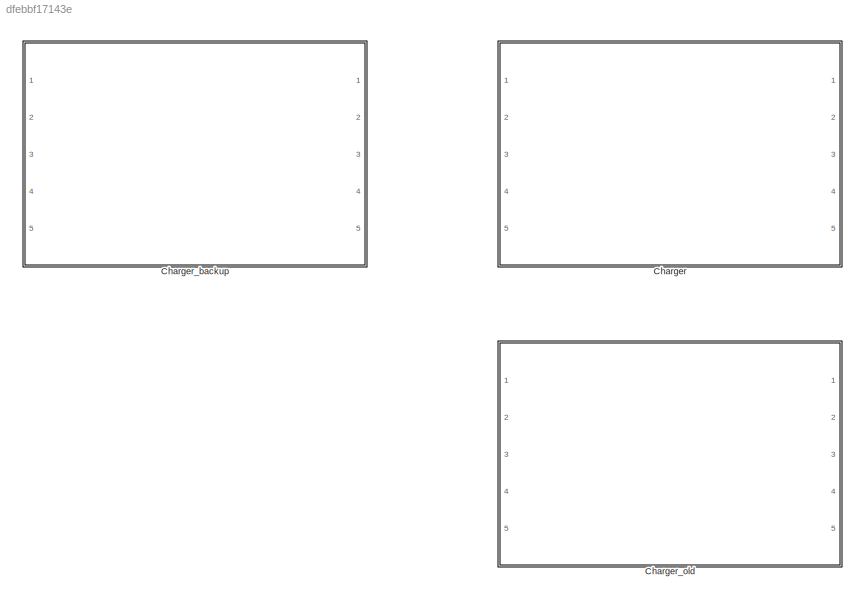
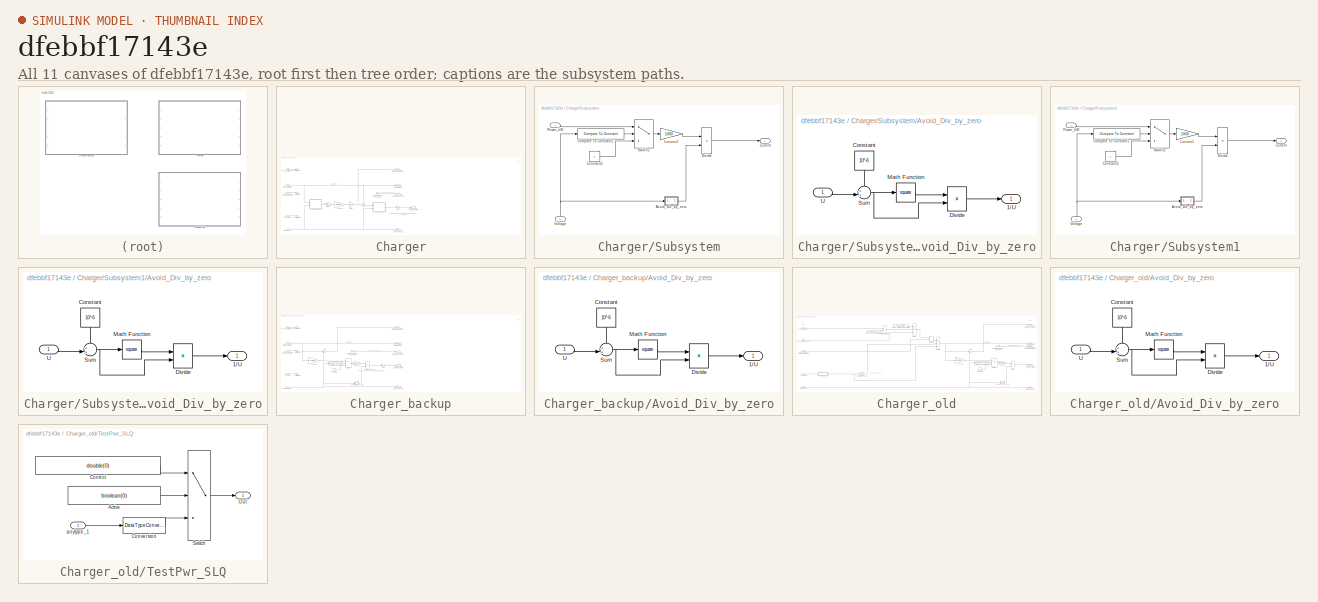
[diagram: thumbnail index - all 11 canvases of the model, root first then tree order]
MODEL slx_dfebbf17143e
KIND library
CONFIG AbsTol = auto
CONFIG FixedStep = auto
CONFIG MaxStep = auto
CONFIG MinStep = auto
CONFIG RelTol = 1e-3
CONFIG SampleTimeConstraint = Unconstrained
CONFIG Solver = ode45
CONFIG SolverMode = Auto
CONFIG SolverName = ode45
CONFIG StartTime = 0.0
CONFIG StopTime = 10.0
BLOCK [SubSystem] Charger
  Ports = [5, 5]
  RequestExecContextInheritance = off
  Variant = off
BLOCK [Gain] Charger/Gain
  Gain = -1
  OutDataTypeStr = Inherit: Inherit via internal rule
  ParamDataTypeStr = Inherit: Inherit via internal rule
  SaturateOnIntegerOverflow = off
BLOCK [Gain] Charger/Gain1
  Gain = 0.001
  OutDataTypeStr = Inherit: Inherit via internal rule
  ParamDataTypeStr = Inherit: Inherit via internal rule
  SaturateOnIntegerOverflow = off
BLOCK [Constant] Charger/Isolation resistance 500k Ohm
  Value = 1000
BLOCK [Gain] Charger/Losses1
  Gain = Charger_resistance
  OutDataTypeStr = Inherit: Inherit via internal rule
  ParamDataTypeStr = Inherit: Inherit via internal rule
  SaturateOnIntegerOverflow = off
BLOCK [Product] Charger/Product
  InputSameDT = off
  OutDataTypeStr = Inherit: Inherit via internal rule
  Ports = [2, 1]
  RndMeth = Floor
  SaturateOnIntegerOverflow = off
BLOCK [SubSystem] Charger/Subsystem
  Ports = [2, 1]
  RequestExecContextInheritance = off
  Variant = off
BLOCK [SubSystem] Charger/Subsystem/Avoid_Div_by_zero
  Ports = [1, 1]
  RequestExecContextInheritance = off
  Variant = off
BLOCK [Outport] Charger/Subsystem/Avoid_Div_by_zero/1//U
  IconDisplay = Port number
BLOCK [Constant] Charger/Subsystem/Avoid_Div_by_zero/Constant
  Value = 10^-6
BLOCK [Product] Charger/Subsystem/Avoid_Div_by_zero/Divide
  InputSameDT = off
  Inputs = /*
  OutDataTypeStr = Inherit: Inherit via internal rule
  Ports = [2, 1]
  RndMeth = Floor
  SaturateOnIntegerOverflow = off
BLOCK [Math] Charger/Subsystem/Avoid_Div_by_zero/Math Function
  Operator = square
  Ports = [1, 1]
BLOCK [Sum] Charger/Subsystem/Avoid_Div_by_zero/Sum
  IconShape = round
  InputSameDT = off
  Inputs = ++|
  OutDataTypeStr = Inherit: Inherit via internal rule
  Ports = [2, 1]
  SaturateOnIntegerOverflow = off
BLOCK [Inport] Charger/Subsystem/Avoid_Div_by_zero/U
  IconDisplay = Port number
BLOCK [Reference] Charger/Subsystem/Compare To Constant1  REF=simulink/Logic and Bit
Operations/Compare
To Constant
  Ports = [1, 1]
  SourceBlock = simulink/Logic and Bit\nOperations/Compare\nTo Constant
  SourceType = Compare To Constant
BLOCK [Constant] Charger/Subsystem/Constant2
  Value = 0
BLOCK [Outport] Charger/Subsystem/Current
  IconDisplay = Port number
BLOCK [Product] Charger/Subsystem/Divide
  InputSameDT = off
  Inputs = **
  OutDataTypeStr = Inherit: Inherit via internal rule
  Ports = [2, 1]
  RndMeth = Floor
  SaturateOnIntegerOverflow = off
BLOCK [Gain] Charger/Subsystem/Losses2
  Gain = 1000
  OutDataTypeStr = Inherit: Inherit via internal rule
  ParamDataTypeStr = Inherit: Inherit via internal rule
  SaturateOnIntegerOverflow = off
BLOCK [Inport] Charger/Subsystem/Power_kW
  IconDisplay = Port number
BLOCK [Switch] Charger/Subsystem/Switch2
  Criteria = u2 > Threshold
  InputSameDT = off
  SaturateOnIntegerOverflow = off
BLOCK [Inport] Charger/Subsystem/Voltage
  IconDisplay = Port number
  Port = 2
BLOCK [SubSystem] Charger/Subsystem1
  Ports = [2, 1]
  RequestExecContextInheritance = off
  Variant = off
BLOCK [SubSystem] Charger/Subsystem1/Avoid_Div_by_zero
  Ports = [1, 1]
  RequestExecContextInheritance = off
  Variant = off
BLOCK [Outport] Charger/Subsystem1/Avoid_Div_by_zero/1//U
  IconDisplay = Port number
BLOCK [Constant] Charger/Subsystem1/Avoid_Div_by_zero/Constant
  Value = 10^-6
BLOCK [Product] Charger/Subsystem1/Avoid_Div_by_zero/Divide
  InputSameDT = off
  Inputs = /*
  OutDataTypeStr = Inherit: Inherit via internal rule
  Ports = [2, 1]
  RndMeth = Floor
  SaturateOnIntegerOverflow = off
BLOCK [Math] Charger/Subsystem1/Avoid_Div_by_zero/Math Function
  Operator = square
  Ports = [1, 1]
BLOCK [Sum] Charger/Subsystem1/Avoid_Div_by_zero/Sum
  IconShape = round
  InputSameDT = off
  Inputs = ++|
  OutDataTypeStr = Inherit: Inherit via internal rule
  Ports = [2, 1]
  SaturateOnIntegerOverflow = off
BLOCK [Inport] Charger/Subsystem1/Avoid_Div_by_zero/U
  IconDisplay = Port number
BLOCK [Reference] Charger/Subsystem1/Compare To Constant1  REF=simulink/Logic and Bit
Operations/Compare
To Constant
  Ports = [1, 1]
  SourceBlock = simulink/Logic and Bit\nOperations/Compare\nTo Constant
  SourceType = Compare To Constant
BLOCK [Constant] Charger/Subsystem1/Constant2
  Value = 0
BLOCK [Outport] Charger/Subsystem1/Current
  IconDisplay = Port number
BLOCK [Product] Charger/Subsystem1/Divide
  InputSameDT = off
  Inputs = **
  OutDataTypeStr = Inherit: Inherit via internal rule
  Ports = [2, 1]
  RndMeth = Floor
  SaturateOnIntegerOverflow = off
BLOCK [Gain] Charger/Subsystem1/Losses2
  Gain = 1000
  OutDataTypeStr = Inherit: Inherit via internal rule
  ParamDataTypeStr = Inherit: Inherit via internal rule
  SaturateOnIntegerOverflow = off
BLOCK [Inport] Charger/Subsystem1/Power_kW
  IconDisplay = Port number
BLOCK [Switch] Charger/Subsystem1/Switch2
  Criteria = u2 > Threshold
  InputSameDT = off
  SaturateOnIntegerOverflow = off
BLOCK [Inport] Charger/Subsystem1/Voltage
  IconDisplay = Port number
  Port = 2
BLOCK [Sum] Charger/Sum
  IconShape = round
  InputSameDT = off
  Inputs = +-|
  OutDataTypeStr = Inherit: Inherit via internal rule
  Ports = [2, 1]
  SaturateOnIntegerOverflow = off
BLOCK [Terminator] Charger/Terminator
BLOCK [Terminator] Charger/Terminator1
BLOCK [Terminator] Charger/Terminator2
BLOCK [Inport] Charger/TestPwrSLQ
  IconDisplay = Port number
  Port = 3
BLOCK [Inport] Charger/VCCU_CAN_MaxPlginChrgPwrLim
  IconDisplay = Port number
  Port = 4
BLOCK [Inport] Charger/evcc_ChrgCoupConn_Stat
  IconDisplay = Port number
BLOCK [Inport] Charger/evcc_EVSE_PresentPower
  IconDisplay = Port number
  Port = 2
BLOCK [Outport] Charger/hvs_VCCU_DCLinkLink_vlt
  IconDisplay = Port number
  Port = 5
BLOCK [Outport] Charger/hvs_charger_ExtChrgr_Isolation_ResistanceCval
  IconDisplay = Port number
  Port = 3
BLOCK [Outport] Charger/hvs_charger_WasteHeat_power
  IconDisplay = Port number
BLOCK [Outport] Charger/hvs_charger_pwrChrgPhy
  IconDisplay = Port number
  Port = 2
BLOCK [Outport] Charger/hvs_dcLink_charger_current
  IconDisplay = Port number
  Port = 4
BLOCK [Inport] Charger/vltZkBmsPhy
  IconDisplay = Port number
  Port = 5
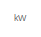
[diagram: Charger_backup - part 1/2, top right region]
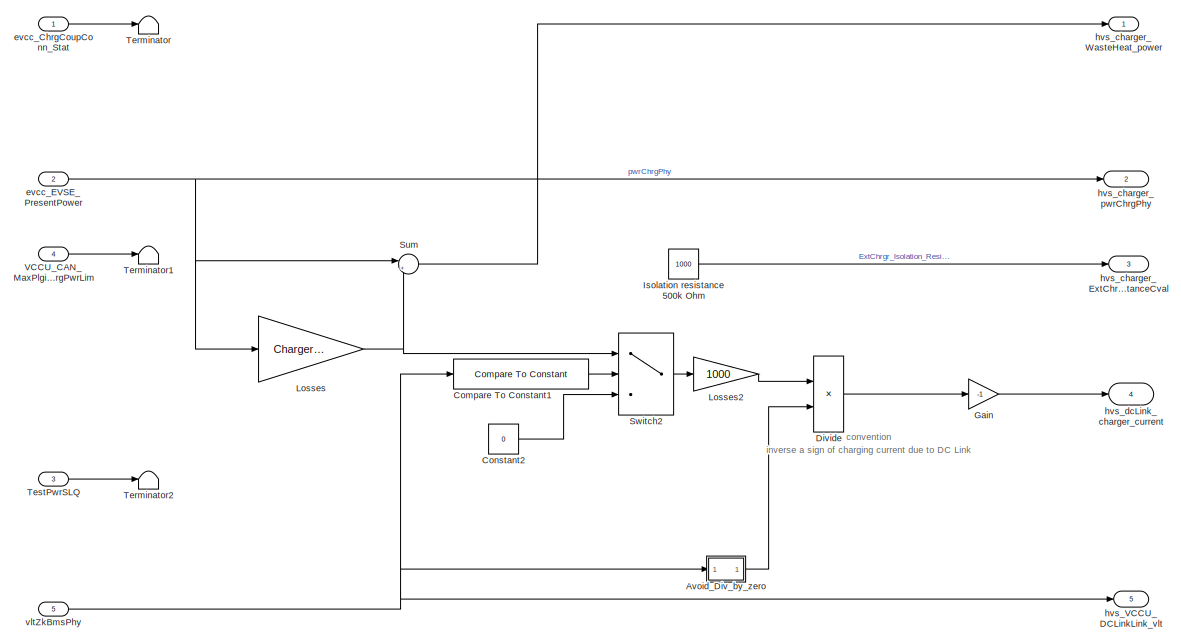
[diagram: Charger_backup - part 2/2, left side, full height]
BLOCK [SubSystem] Charger_backup
  Ports = [5, 5]
  RequestExecContextInheritance = off
  Variant = off
BLOCK [SubSystem] Charger_backup/Avoid_Div_by_zero
  Ports = [1, 1]
  RequestExecContextInheritance = off
  Variant = off
BLOCK [Outport] Charger_backup/Avoid_Div_by_zero/1//U
  IconDisplay = Port number
BLOCK [Constant] Charger_backup/Avoid_Div_by_zero/Constant
  Value = 10^-6
BLOCK [Product] Charger_backup/Avoid_Div_by_zero/Divide
  InputSameDT = off
  Inputs = /*
  OutDataTypeStr = Inherit: Inherit via internal rule
  Ports = [2, 1]
  RndMeth = Floor
  SaturateOnIntegerOverflow = off
BLOCK [Math] Charger_backup/Avoid_Div_by_zero/Math Function
  Operator = square
  Ports = [1, 1]
BLOCK [Sum] Charger_backup/Avoid_Div_by_zero/Sum
  IconShape = round
  InputSameDT = off
  Inputs = ++|
  OutDataTypeStr = Inherit: Inherit via internal rule
  Ports = [2, 1]
  SaturateOnIntegerOverflow = off
BLOCK [Inport] Charger_backup/Avoid_Div_by_zero/U
  IconDisplay = Port number
BLOCK [Reference] Charger_backup/Compare To Constant1  REF=simulink/Logic and Bit
Operations/Compare
To Constant
  Ports = [1, 1]
  SourceBlock = simulink/Logic and Bit\nOperations/Compare\nTo Constant
  SourceType = Compare To Constant
BLOCK [Constant] Charger_backup/Constant2
  Value = 0
BLOCK [Product] Charger_backup/Divide
  InputSameDT = off
  Inputs = **
  OutDataTypeStr = Inherit: Inherit via internal rule
  Ports = [2, 1]
  RndMeth = Floor
  SaturateOnIntegerOverflow = off
BLOCK [Gain] Charger_backup/Gain
  Gain = -1
  OutDataTypeStr = Inherit: Inherit via internal rule
  ParamDataTypeStr = Inherit: Inherit via internal rule
  SaturateOnIntegerOverflow = off
BLOCK [Constant] Charger_backup/Isolation resistance 500k Ohm
  Value = 1000
BLOCK [Gain] Charger_backup/Losses
  Gain = Charger.efficiency
  OutDataTypeStr = Inherit: Inherit via internal rule
  ParamDataTypeStr = Inherit: Inherit via internal rule
  SaturateOnIntegerOverflow = off
BLOCK [Gain] Charger_backup/Losses2
  Gain = 1000
  OutDataTypeStr = Inherit: Inherit via internal rule
  ParamDataTypeStr = Inherit: Inherit via internal rule
  SaturateOnIntegerOverflow = off
BLOCK [Sum] Charger_backup/Sum
  IconShape = round
  InputSameDT = off
  Inputs = |+-
  OutDataTypeStr = Inherit: Inherit via internal rule
  Ports = [2, 1]
  SaturateOnIntegerOverflow = off
BLOCK [Switch] Charger_backup/Switch2
  Criteria = u2 > Threshold
  InputSameDT = off
  SaturateOnIntegerOverflow = off
BLOCK [Terminator] Charger_backup/Terminator
BLOCK [Terminator] Charger_backup/Terminator1
BLOCK [Terminator] Charger_backup/Terminator2
BLOCK [Inport] Charger_backup/TestPwrSLQ
  IconDisplay = Port number
  Port = 3
BLOCK [Inport] Charger_backup/VCCU_CAN_MaxPlginChrgPwrLim
  IconDisplay = Port number
  Port = 4
BLOCK [Inport] Charger_backup/evcc_ChrgCoupConn_Stat
  IconDisplay = Port number
BLOCK [Inport] Charger_backup/evcc_EVSE_PresentPower
  IconDisplay = Port number
  Port = 2
BLOCK [Outport] Charger_backup/hvs_VCCU_DCLinkLink_vlt
  IconDisplay = Port number
  Port = 5
BLOCK [Outport] Charger_backup/hvs_charger_ExtChrgr_Isolation_ResistanceCval
  IconDisplay = Port number
  Port = 3
BLOCK [Outport] Charger_backup/hvs_charger_WasteHeat_power
  IconDisplay = Port number
BLOCK [Outport] Charger_backup/hvs_charger_pwrChrgPhy
  IconDisplay = Port number
  Port = 2
BLOCK [Outport] Charger_backup/hvs_dcLink_charger_current
  IconDisplay = Port number
  Port = 4
BLOCK [Inport] Charger_backup/vltZkBmsPhy
  IconDisplay = Port number
  Port = 5
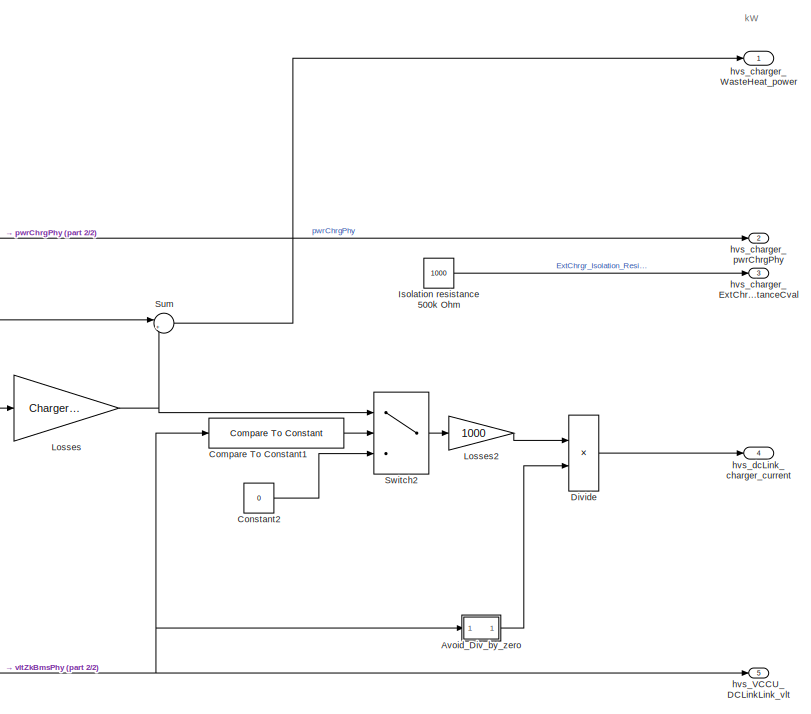
[diagram: Charger_old - part 1/2, right side, full height]
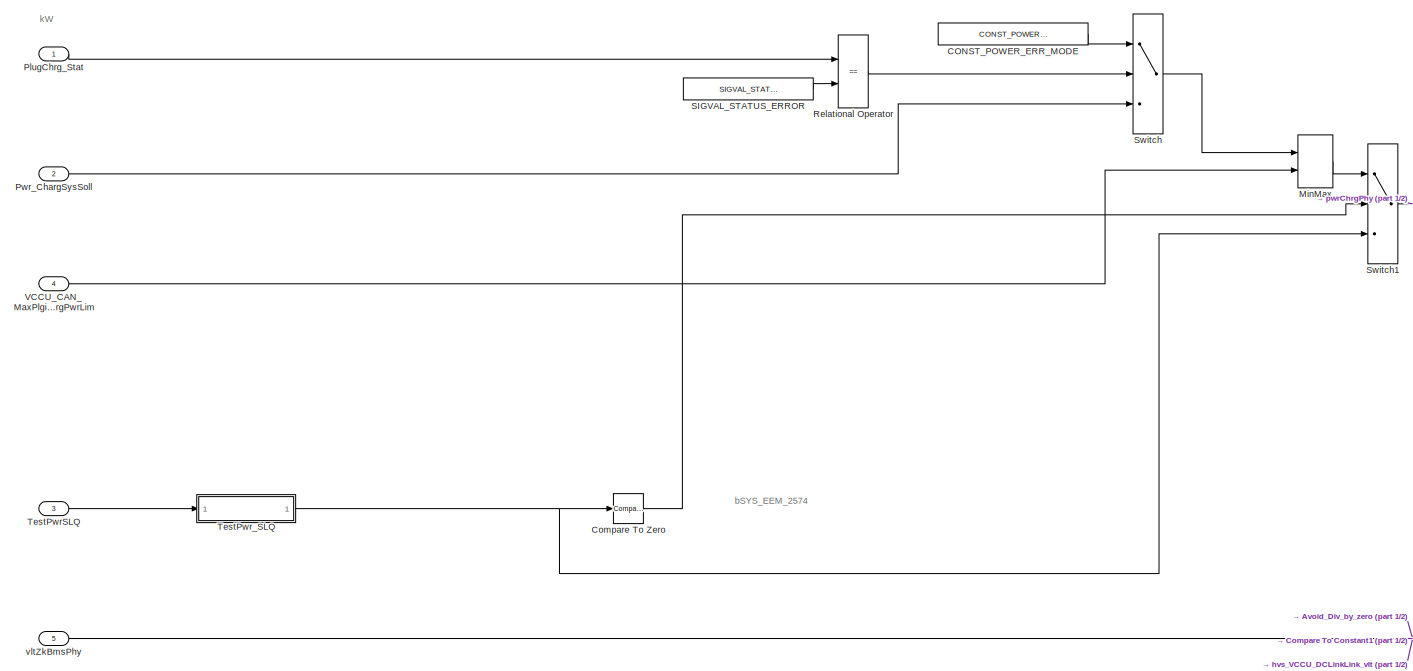
[diagram: Charger_old - part 2/2, left side, full height]
BLOCK [SubSystem] Charger_old
  Ports = [5, 5]
  RequestExecContextInheritance = off
  Variant = off
BLOCK [SubSystem] Charger_old/Avoid_Div_by_zero
  Ports = [1, 1]
  RequestExecContextInheritance = off
  Variant = off
BLOCK [Outport] Charger_old/Avoid_Div_by_zero/1//U
  IconDisplay = Port number
BLOCK [Constant] Charger_old/Avoid_Div_by_zero/Constant
  Value = 10^-6
BLOCK [Product] Charger_old/Avoid_Div_by_zero/Divide
  InputSameDT = off
  Inputs = /*
  OutDataTypeStr = Inherit: Inherit via internal rule
  Ports = [2, 1]
  RndMeth = Floor
  SaturateOnIntegerOverflow = off
BLOCK [Math] Charger_old/Avoid_Div_by_zero/Math Function
  Operator = square
  Ports = [1, 1]
BLOCK [Sum] Charger_old/Avoid_Div_by_zero/Sum
  IconShape = round
  InputSameDT = off
  Inputs = ++|
  OutDataTypeStr = Inherit: Inherit via internal rule
  Ports = [2, 1]
  SaturateOnIntegerOverflow = off
BLOCK [Inport] Charger_old/Avoid_Div_by_zero/U
  IconDisplay = Port number
BLOCK [Constant] Charger_old/CONST_POWER_ERR_MODE
  Value = CONST_POWER_ERR_MODE
BLOCK [Reference] Charger_old/Compare To Constant1  REF=simulink/Logic and Bit
Operations/Compare
To Constant
  Ports = [1, 1]
  SourceBlock = simulink/Logic and Bit\nOperations/Compare\nTo Constant
  SourceType = Compare To Constant
BLOCK [Reference] Charger_old/Compare To Zero  REF=simulink/Logic and Bit
Operations/Compare
To Zero
  Ports = [1, 1]
  SourceBlock = simulink/Logic and Bit\nOperations/Compare\nTo Zero
  SourceType = Compare To Zero
BLOCK [Constant] Charger_old/Constant2
  Value = 0
BLOCK [Product] Charger_old/Divide
  InputSameDT = off
  Inputs = **
  OutDataTypeStr = Inherit: Inherit via internal rule
  Ports = [2, 1]
  RndMeth = Floor
  SaturateOnIntegerOverflow = off
BLOCK [Constant] Charger_old/Isolation resistance 500k Ohm
  Value = 1000
BLOCK [Gain] Charger_old/Losses
  Gain = Charger.efficiency
  OutDataTypeStr = Inherit: Inherit via internal rule
  ParamDataTypeStr = Inherit: Inherit via internal rule
  SaturateOnIntegerOverflow = off
BLOCK [Gain] Charger_old/Losses2
  Gain = 1000
  OutDataTypeStr = Inherit: Inherit via internal rule
  ParamDataTypeStr = Inherit: Inherit via internal rule
  SaturateOnIntegerOverflow = off
BLOCK [MinMax] Charger_old/MinMax
  InputSameDT = off
  Inputs = 2
  Ports = [2, 1]
  SaturateOnIntegerOverflow = off
BLOCK [Inport] Charger_old/PlugChrg_Stat
  IconDisplay = Port number
BLOCK [Inport] Charger_old/Pwr_ChargSysSoll
  IconDisplay = Port number
  Port = 2
BLOCK [RelationalOperator] Charger_old/Relational Operator
  InputSameDT = off
  Operator = ==
  OutDataTypeStr = boolean
  Ports = [2, 1]
BLOCK [Constant] Charger_old/SIGVAL_STATUS_ERROR
  Value = SIGVAL_STATUS_ERROR
BLOCK [Sum] Charger_old/Sum
  IconShape = round
  InputSameDT = off
  Inputs = |+-
  OutDataTypeStr = Inherit: Inherit via internal rule
  Ports = [2, 1]
  SaturateOnIntegerOverflow = off
BLOCK [Switch] Charger_old/Switch
  InputSameDT = off
  SaturateOnIntegerOverflow = off
  Threshold = 0.5
BLOCK [Switch] Charger_old/Switch1
  InputSameDT = off
  SaturateOnIntegerOverflow = off
  Threshold = 0.5
BLOCK [Switch] Charger_old/Switch2
  Criteria = u2 > Threshold
  InputSameDT = off
  SaturateOnIntegerOverflow = off
BLOCK [Inport] Charger_old/TestPwrSLQ
  IconDisplay = Port number
  Port = 3
BLOCK [SubSystem] Charger_old/TestPwr_SLQ
  OpenFcn = TOI_Block
  Ports = [1, 1]
  RequestExecContextInheritance = off
  Tag = Manip_Signal
  Variant = off
BLOCK [Constant] Charger_old/TestPwr_SLQ/Active
  Value = boolean(0)
BLOCK [Constant] Charger_old/TestPwr_SLQ/Control
  Value = double(0)
BLOCK [DataTypeConversion] Charger_old/TestPwr_SLQ/Conversion
  SaturateOnIntegerOverflow = off
BLOCK [Outport] Charger_old/TestPwr_SLQ/Out
  Description = ||0|0|0
  IconDisplay = Port number
BLOCK [Switch] Charger_old/TestPwr_SLQ/Switch
  Threshold = 0.1
BLOCK [Inport] Charger_old/TestPwr_SLQ/anytype_1
  IconDisplay = Port number
BLOCK [Inport] Charger_old/VCCU_CAN_MaxPlginChrgPwrLim
  IconDisplay = Port number
  Port = 4
BLOCK [Outport] Charger_old/hvs_VCCU_DCLinkLink_vlt
  IconDisplay = Port number
  Port = 5
BLOCK [Outport] Charger_old/hvs_charger_ExtChrgr_Isolation_ResistanceCval
  IconDisplay = Port number
  Port = 3
BLOCK [Outport] Charger_old/hvs_charger_WasteHeat_power
  IconDisplay = Port number
BLOCK [Outport] Charger_old/hvs_charger_pwrChrgPhy
  IconDisplay = Port number
  Port = 2
BLOCK [Outport] Charger_old/hvs_dcLink_charger_current
  IconDisplay = Port number
  Port = 4
BLOCK [Inport] Charger_old/vltZkBmsPhy
  IconDisplay = Port number
  Port = 5
ANNOTATION Charger: inverse a sign of charging current due to DC Link convention
ANNOTATION Charger: kW
ANNOTATION Charger_backup: inverse a sign of charging current due to DC Link convention
ANNOTATION Charger_backup: kW
ANNOTATION Charger_old: bSYS_EEM_2574
ANNOTATION Charger_old: kW
NET Charger/Gain1:1 -> Charger/Sum:2, Charger/hvs_charger_WasteHeat_power:1
LINE Charger/Gain:1 -> Charger/hvs_dcLink_charger_current:1
LINE Charger/Isolation resistance 500k Ohm:1 -> Charger/hvs_charger_ExtChrgr_Isolation_ResistanceCval:1
LINE Charger/Losses1:1 -> Charger/Gain1:1
LINE Charger/Product:1 -> Charger/Losses1:1
LINE Charger/Subsystem/Avoid_Div_by_zero/Constant:1 -> Charger/Subsystem/Avoid_Div_by_zero/Sum:1
LINE Charger/Subsystem/Avoid_Div_by_zero/Divide:1 -> Charger/Subsystem/Avoid_Div_by_zero/1//U:1
LINE Charger/Subsystem/Avoid_Div_by_zero/Math Function:1 -> Charger/Subsystem/Avoid_Div_by_zero/Divide:1
NET Charger/Subsystem/Avoid_Div_by_zero/Sum:1 -> Charger/Subsystem/Avoid_Div_by_zero/Divide:2, Charger/Subsystem/Avoid_Div_by_zero/Math Function:1
LINE Charger/Subsystem/Avoid_Div_by_zero/U:1 -> Charger/Subsystem/Avoid_Div_by_zero/Sum:2
LINE Charger/Subsystem/Avoid_Div_by_zero:1 -> Charger/Subsystem/Divide:2
LINE Charger/Subsystem/Compare To Constant1:1 -> Charger/Subsystem/Switch2:2
LINE Charger/Subsystem/Constant2:1 -> Charger/Subsystem/Switch2:3
LINE Charger/Subsystem/Divide:1 -> Charger/Subsystem/Current:1
LINE Charger/Subsystem/Losses2:1 -> Charger/Subsystem/Divide:1
LINE Charger/Subsystem/Power_kW:1 -> Charger/Subsystem/Switch2:1
LINE Charger/Subsystem/Switch2:1 -> Charger/Subsystem/Losses2:1
NET Charger/Subsystem/Voltage:1 -> Charger/Subsystem/Avoid_Div_by_zero:1, Charger/Subsystem/Compare To Constant1:1
LINE Charger/Subsystem1/Avoid_Div_by_zero/Constant:1 -> Charger/Subsystem1/Avoid_Div_by_zero/Sum:1
LINE Charger/Subsystem1/Avoid_Div_by_zero/Divide:1 -> Charger/Subsystem1/Avoid_Div_by_zero/1//U:1
LINE Charger/Subsystem1/Avoid_Div_by_zero/Math Function:1 -> Charger/Subsystem1/Avoid_Div_by_zero/Divide:1
NET Charger/Subsystem1/Avoid_Div_by_zero/Sum:1 -> Charger/Subsystem1/Avoid_Div_by_zero/Divide:2, Charger/Subsystem1/Avoid_Div_by_zero/Math Function:1
LINE Charger/Subsystem1/Avoid_Div_by_zero/U:1 -> Charger/Subsystem1/Avoid_Div_by_zero/Sum:2
LINE Charger/Subsystem1/Avoid_Div_by_zero:1 -> Charger/Subsystem1/Divide:2
LINE Charger/Subsystem1/Compare To Constant1:1 -> Charger/Subsystem1/Switch2:2
LINE Charger/Subsystem1/Constant2:1 -> Charger/Subsystem1/Switch2:3
LINE Charger/Subsystem1/Divide:1 -> Charger/Subsystem1/Current:1
LINE Charger/Subsystem1/Losses2:1 -> Charger/Subsystem1/Divide:1
LINE Charger/Subsystem1/Power_kW:1 -> Charger/Subsystem1/Switch2:1
LINE Charger/Subsystem1/Switch2:1 -> Charger/Subsystem1/Losses2:1
NET Charger/Subsystem1/Voltage:1 -> Charger/Subsystem1/Avoid_Div_by_zero:1, Charger/Subsystem1/Compare To Constant1:1
LINE Charger/Subsystem1:1 -> Charger/Gain:1
NET Charger/Subsystem:1 -> Charger/Product:1, Charger/Product:2
LINE Charger/Sum:1 -> Charger/Subsystem1:1
LINE Charger/TestPwrSLQ:1 -> Charger/Terminator2:1
LINE Charger/VCCU_CAN_MaxPlginChrgPwrLim:1 -> Charger/Terminator1:1
LINE Charger/evcc_ChrgCoupConn_Stat:1 -> Charger/Terminator:1
NET Charger/evcc_EVSE_PresentPower:1 -> Charger/Subsystem:1, Charger/Sum:1, Charger/hvs_charger_pwrChrgPhy:1
NET Charger/vltZkBmsPhy:1 -> Charger/Subsystem1:2, Charger/Subsystem:2, Charger/hvs_VCCU_DCLinkLink_vlt:1
LINE Charger_backup/Avoid_Div_by_zero/Constant:1 -> Charger_backup/Avoid_Div_by_zero/Sum:1
LINE Charger_backup/Avoid_Div_by_zero/Divide:1 -> Charger_backup/Avoid_Div_by_zero/1//U:1
LINE Charger_backup/Avoid_Div_by_zero/Math Function:1 -> Charger_backup/Avoid_Div_by_zero/Divide:1
NET Charger_backup/Avoid_Div_by_zero/Sum:1 -> Charger_backup/Avoid_Div_by_zero/Divide:2, Charger_backup/Avoid_Div_by_zero/Math Function:1
LINE Charger_backup/Avoid_Div_by_zero/U:1 -> Charger_backup/Avoid_Div_by_zero/Sum:2
LINE Charger_backup/Avoid_Div_by_zero:1 -> Charger_backup/Divide:2
LINE Charger_backup/Compare To Constant1:1 -> Charger_backup/Switch2:2
LINE Charger_backup/Constant2:1 -> Charger_backup/Switch2:3
LINE Charger_backup/Divide:1 -> Charger_backup/Gain:1
LINE Charger_backup/Gain:1 -> Charger_backup/hvs_dcLink_charger_current:1
LINE Charger_backup/Isolation resistance 500k Ohm:1 -> Charger_backup/hvs_charger_ExtChrgr_Isolation_ResistanceCval:1
LINE Charger_backup/Losses2:1 -> Charger_backup/Divide:1
NET Charger_backup/Losses:1 -> Charger_backup/Sum:2, Charger_backup/Switch2:1
LINE Charger_backup/Sum:1 -> Charger_backup/hvs_charger_WasteHeat_power:1
LINE Charger_backup/Switch2:1 -> Charger_backup/Losses2:1
LINE Charger_backup/TestPwrSLQ:1 -> Charger_backup/Terminator2:1
LINE Charger_backup/VCCU_CAN_MaxPlginChrgPwrLim:1 -> Charger_backup/Terminator1:1
LINE Charger_backup/evcc_ChrgCoupConn_Stat:1 -> Charger_backup/Terminator:1
NET Charger_backup/evcc_EVSE_PresentPower:1 -> Charger_backup/Losses:1, Charger_backup/Sum:1, Charger_backup/hvs_charger_pwrChrgPhy:1
NET Charger_backup/vltZkBmsPhy:1 -> Charger_backup/Avoid_Div_by_zero:1, Charger_backup/Compare To Constant1:1, Charger_backup/hvs_VCCU_DCLinkLink_vlt:1
LINE Charger_old/Avoid_Div_by_zero/Constant:1 -> Charger_old/Avoid_Div_by_zero/Sum:1
LINE Charger_old/Avoid_Div_by_zero/Divide:1 -> Charger_old/Avoid_Div_by_zero/1//U:1
LINE Charger_old/Avoid_Div_by_zero/Math Function:1 -> Charger_old/Avoid_Div_by_zero/Divide:1
NET Charger_old/Avoid_Div_by_zero/Sum:1 -> Charger_old/Avoid_Div_by_zero/Divide:2, Charger_old/Avoid_Div_by_zero/Math Function:1
LINE Charger_old/Avoid_Div_by_zero/U:1 -> Charger_old/Avoid_Div_by_zero/Sum:2
LINE Charger_old/Avoid_Div_by_zero:1 -> Charger_old/Divide:2
LINE Charger_old/CONST_POWER_ERR_MODE:1 -> Charger_old/Switch:1
LINE Charger_old/Compare To Constant1:1 -> Charger_old/Switch2:2
LINE Charger_old/Compare To Zero:1 -> Charger_old/Switch1:2
LINE Charger_old/Constant2:1 -> Charger_old/Switch2:3
LINE Charger_old/Divide:1 -> Charger_old/hvs_dcLink_charger_current:1
LINE Charger_old/Isolation resistance 500k Ohm:1 -> Charger_old/hvs_charger_ExtChrgr_Isolation_ResistanceCval:1
LINE Charger_old/Losses2:1 -> Charger_old/Divide:1
NET Charger_old/Losses:1 -> Charger_old/Sum:2, Charger_old/Switch2:1
LINE Charger_old/MinMax:1 -> Charger_old/Switch1:1
LINE Charger_old/PlugChrg_Stat:1 -> Charger_old/Relational Operator:1
LINE Charger_old/Pwr_ChargSysSoll:1 -> Charger_old/Switch:3
LINE Charger_old/Relational Operator:1 -> Charger_old/Switch:2
LINE Charger_old/SIGVAL_STATUS_ERROR:1 -> Charger_old/Relational Operator:2
LINE Charger_old/Sum:1 -> Charger_old/hvs_charger_WasteHeat_power:1
NET Charger_old/Switch1:1 -> Charger_old/Losses:1, Charger_old/Sum:1, Charger_old/hvs_charger_pwrChrgPhy:1
LINE Charger_old/Switch2:1 -> Charger_old/Losses2:1
LINE Charger_old/Switch:1 -> Charger_old/MinMax:1
LINE Charger_old/TestPwrSLQ:1 -> Charger_old/TestPwr_SLQ:1
NET Charger_old/TestPwr_SLQ:1 -> Charger_old/Compare To Zero:1, Charger_old/Switch1:3
LINE Charger_old/VCCU_CAN_MaxPlginChrgPwrLim:1 -> Charger_old/MinMax:2
NET Charger_old/vltZkBmsPhy:1 -> Charger_old/Avoid_Div_by_zero:1, Charger_old/Compare To Constant1:1, Charger_old/hvs_VCCU_DCLinkLink_vlt:1
note: NET lines group one-source signal fan-out (src -> all destinations, sorted); 1:1 wires keep LINE
